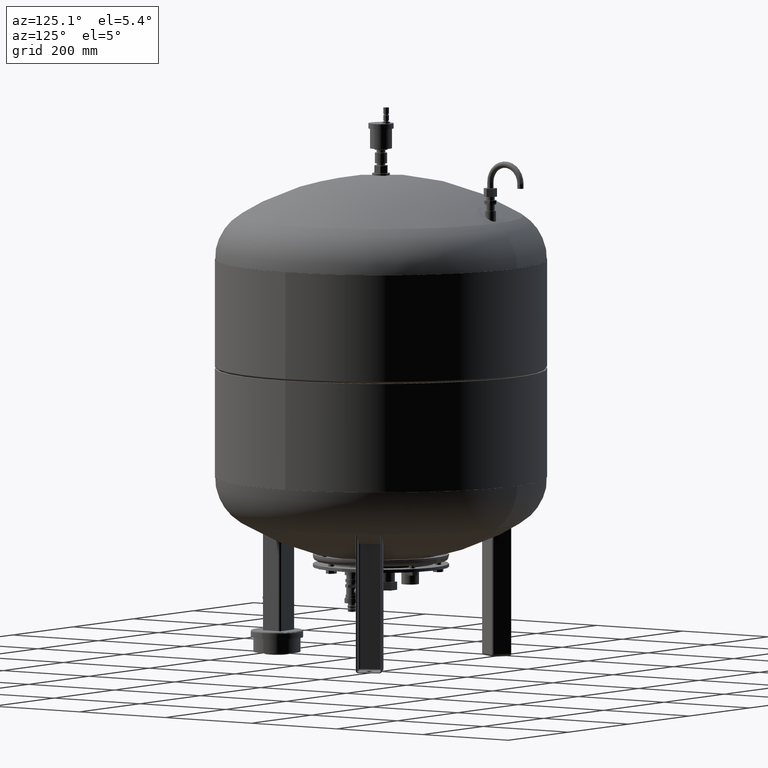
[diagram: clean part render]
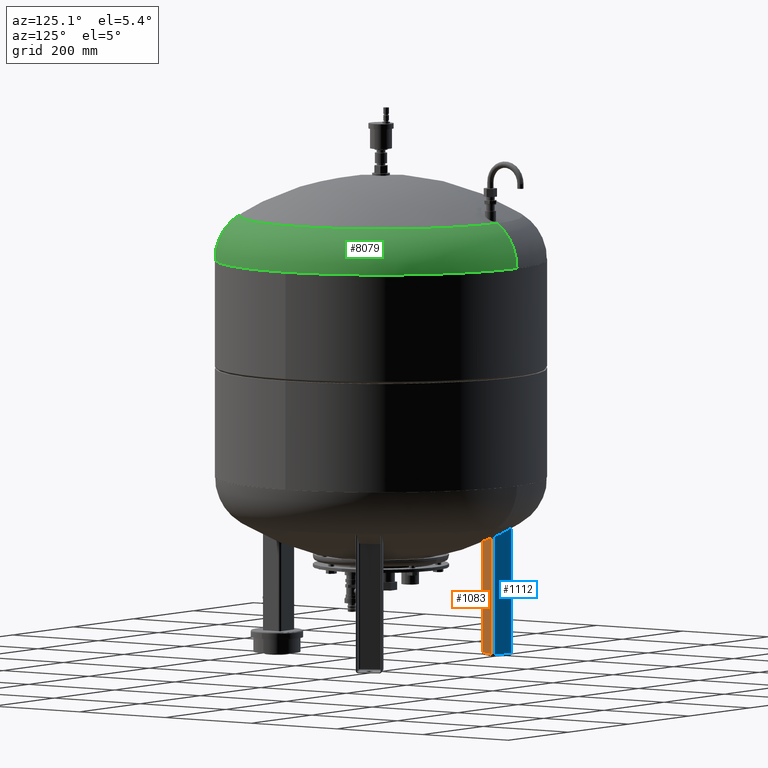
[diagram: same view with three faces highlighted in distinct colors, each labeled with its STEP entity id]
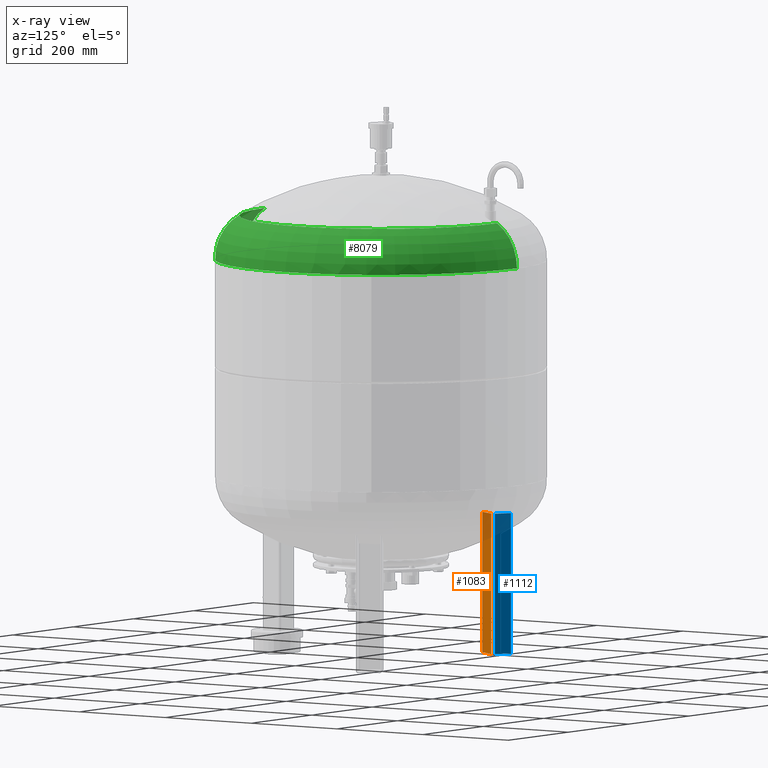
[diagram: x-ray of the same camera — body ghosted, the three highlighted faces saturated]
A machine part, auxiliary view with three faces highlighted in distinct colors.
The next image is the same camera in x-ray (body ghosted, the three faces saturated) — at least one of them is partly hidden behind the body in this view.
Their STEP definitions:

[orange] entity #1083 — the highlighted planar face has unit normal (0.866, -0.5, -0).
#267=CARTESIAN_POINT('',(-202.690652342037570,93.929491924311279,274.0));
#268=VERTEX_POINT('',#267);
#276=CARTESIAN_POINT('',(-182.690652342037590,128.570508075688820,274.0));
#277=VERTEX_POINT('',#276);
#278=CARTESIAN_POINT('',(-182.690652342037590,128.570508075688820,274.0));
#279=DIRECTION('',(-0.499999999999999,-0.866025403784439,0.0));
#280=VECTOR('',#279,39.999999999999986);
#281=LINE('',#278,#280);
#282=EDGE_CURVE('',#277,#268,#281,.T.);
#948=CARTESIAN_POINT('',(-182.690652342037590,128.570508075688850,4.999999999999996));
#949=VERTEX_POINT('',#948);
#957=CARTESIAN_POINT('',(-202.690652342037570,93.929491924311293,5.000000000000004));
#958=VERTEX_POINT('',#957);
#959=CARTESIAN_POINT('',(-182.690652342037590,128.570508075688850,4.999999999999996));
#960=DIRECTION('',(-0.499999999999999,-0.866025403784439,1.776357E-016));
#961=VECTOR('',#960,39.999999999999993);
#962=LINE('',#959,#961);
#963=EDGE_CURVE('',#949,#958,#962,.T.);
#1051=CARTESIAN_POINT('',(-202.690652342037570,93.929491924311293,5.000000000000004));
#1052=DIRECTION('',(0.0,0.0,1.0));
#1053=VECTOR('',#1052,269.0);
#1054=LINE('',#1051,#1053);
#1055=EDGE_CURVE('',#958,#268,#1054,.T.);
#1067=CARTESIAN_POINT('',(-180.190652342037590,132.900635094611030,-4.592425E-015));
#1068=DIRECTION('',(0.866025403784439,-0.500000000000000,-5.710451E-032));
#1069=DIRECTION('',(0.500000000000000,0.866025403784439,-1.836970E-016));
#1070=AXIS2_PLACEMENT_3D('',#1067,#1068,#1069);
#1071=PLANE('',#1070);
#1072=ORIENTED_EDGE('',*,*,#963,.F.);
#1073=CARTESIAN_POINT('',(-182.690652342037590,128.570508075688850,4.999999999999996));
#1074=DIRECTION('',(0.0,0.0,1.0));
#1075=VECTOR('',#1074,269.0);
#1076=LINE('',#1073,#1075);
#1077=EDGE_CURVE('',#949,#277,#1076,.T.);
#1078=ORIENTED_EDGE('',*,*,#1077,.T.);
#1079=ORIENTED_EDGE('',*,*,#282,.T.);
#1080=ORIENTED_EDGE('',*,*,#1055,.F.);
#1081=EDGE_LOOP('',(#1072,#1078,#1079,#1080));
#1082=FACE_OUTER_BOUND('',#1081,.T.);
#1083=ADVANCED_FACE('',(#1082),#1071,.T.);

[blue] entity #1112 — the highlighted planar face has unit normal (0.5, 0.866, -0).
#284=CARTESIAN_POINT('',(-184.520779360959780,135.400635094611030,274.0));
#285=VERTEX_POINT('',#284);
#293=CARTESIAN_POINT('',(-213.965643089630700,152.400635094611030,274.0));
#294=VERTEX_POINT('',#293);
#295=CARTESIAN_POINT('',(-213.965643089630700,152.400635094611030,274.0));
#296=DIRECTION('',(0.866025403784439,-0.500000000000000,0.0));
#297=VECTOR('',#296,34.000000000000007);
#298=LINE('',#295,#297);
#299=EDGE_CURVE('',#294,#285,#298,.T.);
#604=CARTESIAN_POINT('',(-213.965643089630700,152.400635094611030,4.999999999999996));
#605=VERTEX_POINT('',#604);
#606=CARTESIAN_POINT('',(-213.965643089630700,152.400635094611030,4.999999999999996));
#607=DIRECTION('',(0.0,0.0,1.0));
#608=VECTOR('',#607,269.0);
#609=LINE('',#606,#608);
#610=EDGE_CURVE('',#605,#294,#609,.T.);
#987=CARTESIAN_POINT('',(-184.520779360959780,135.400635094611030,4.999999999999996));
#988=VERTEX_POINT('',#987);
#989=CARTESIAN_POINT('',(-213.965643089630700,152.400635094611030,4.999999999999996));
#990=DIRECTION('',(0.866025403784439,-0.500000000000000,0.0));
#991=VECTOR('',#990,34.000000000000007);
#992=LINE('',#989,#991);
#993=EDGE_CURVE('',#605,#988,#992,.T.);
#1090=CARTESIAN_POINT('',(-184.520779360959780,135.400635094611030,4.999999999999996));
#1091=DIRECTION('',(0.0,0.0,1.0));
#1092=VECTOR('',#1091,269.0);
#1093=LINE('',#1090,#1092);
#1094=EDGE_CURVE('',#988,#285,#1093,.T.);
#1101=CARTESIAN_POINT('',(-214.831668493415150,152.900635094611030,-4.592425E-015));
#1102=DIRECTION('',(0.500000000000000,0.866025403784439,-1.836970E-016));
#1103=DIRECTION('',(-0.866025403784439,0.500000000000000,2.039447E-032));
#1104=AXIS2_PLACEMENT_3D('',#1101,#1102,#1103);
#1105=PLANE('',#1104);
#1106=ORIENTED_EDGE('',*,*,#610,.T.);
#1107=ORIENTED_EDGE('',*,*,#299,.T.);
#1108=ORIENTED_EDGE('',*,*,#1094,.F.);
#1109=ORIENTED_EDGE('',*,*,#993,.F.);
#1110=EDGE_LOOP('',(#1106,#1107,#1108,#1109));
#1111=FACE_OUTER_BOUND('',#1110,.T.);
#1112=ADVANCED_FACE('',(#1111),#1105,.T.);

[green] entity #8079 — the highlighted toroidal blend (fillet) surface has major radius 218 mm and minor (blend) radius 99 mm.
#7825=CARTESIAN_POINT('',(317.0,4.952583E-014,768.240550627371360));
#7826=VERTEX_POINT('',#7825);
#7833=CARTESIAN_POINT('',(1.282117E-018,-317.0,768.240550627371140));
#7834=VERTEX_POINT('',#7833);
#7835=CARTESIAN_POINT('',(-1.556097E-014,4.952455E-014,768.240550627371360));
#7836=DIRECTION('',(0.0,0.0,-1.0));
#7837=DIRECTION('',(-1.0,0.0,0.0));
#7838=AXIS2_PLACEMENT_3D('',#7835,#7836,#7837);
#7839=CIRCLE('',#7838,317.000000000000060);
#7840=EDGE_CURVE('',#7826,#7834,#7839,.T.);
#7857=CARTESIAN_POINT('',(-3.882130E-014,317.000000000000110,768.240550627371590));
#7858=VERTEX_POINT('',#7857);
#7859=CARTESIAN_POINT('',(-2.507790E-014,270.639024390243830,852.086439681297630));
#7860=VERTEX_POINT('',#7859);
#7861=CARTESIAN_POINT('',(-2.669730E-014,218.000000000000060,768.240550627371480));
#7862=DIRECTION('',(1.0,0.0,0.0));
#7863=DIRECTION('',(0.0,1.0,0.0));
#7864=AXIS2_PLACEMENT_3D('',#7861,#7862,#7863);
#7865=CIRCLE('',#7864,99.0);
#7866=EDGE_CURVE('',#7858,#7860,#7865,.T.);
#7876=CARTESIAN_POINT('',(8.066920E-015,-270.639024390243830,852.086439681297410));
#7877=VERTEX_POINT('',#7876);
#7878=CARTESIAN_POINT('',(8.817081E-019,-217.999999999999940,768.240550627371250));
#7879=DIRECTION('',(-1.0,0.0,0.0));
#7880=DIRECTION('',(0.0,-1.0,0.0));
#7881=AXIS2_PLACEMENT_3D('',#7878,#7879,#7880);
#7882=CIRCLE('',#7881,99.0);
#7883=EDGE_CURVE('',#7834,#7877,#7882,.T.);
#8051=CARTESIAN_POINT('',(-7.495146E-015,2.385415E-014,852.086439681297520));
#8052=DIRECTION('',(0.0,0.0,-1.0));
#8053=DIRECTION('',(-1.0,0.0,0.0));
#8054=AXIS2_PLACEMENT_3D('',#8051,#8052,#8053);
#8055=CIRCLE('',#8054,270.639024390243830);
#8056=EDGE_CURVE('',#7860,#7877,#8055,.T.);
#8061=CARTESIAN_POINT('',(-3.639005E-030,4.952455E-014,768.240550627371360));
#8062=DIRECTION('',(-9.619823E-017,3.061617E-016,-1.0));
#8063=DIRECTION('',(0.0,1.0,0.0));
#8064=AXIS2_PLACEMENT_3D('',#8061,#8062,#8063);
#8065=TOROIDAL_SURFACE('',#8064,218.0,99.0);
#8066=ORIENTED_EDGE('',*,*,#7866,.T.);
#8067=ORIENTED_EDGE('',*,*,#8056,.T.);
#8068=ORIENTED_EDGE('',*,*,#7883,.F.);
#8069=ORIENTED_EDGE('',*,*,#7840,.F.);
#8070=CARTESIAN_POINT('',(-1.556097E-014,4.952455E-014,768.240550627371360));
#8071=DIRECTION('',(0.0,0.0,-1.0));
#8072=DIRECTION('',(-1.0,0.0,0.0));
#8073=AXIS2_PLACEMENT_3D('',#8070,#8071,#8072);
#8074=CIRCLE('',#8073,317.000000000000060);
#8075=EDGE_CURVE('',#7858,#7826,#8074,.T.);
#8076=ORIENTED_EDGE('',*,*,#8075,.F.);
#8077=EDGE_LOOP('',(#8066,#8067,#8068,#8069,#8076));
#8078=FACE_OUTER_BOUND('',#8077,.T.);
#8079=ADVANCED_FACE('',(#8078),#8065,.T.);